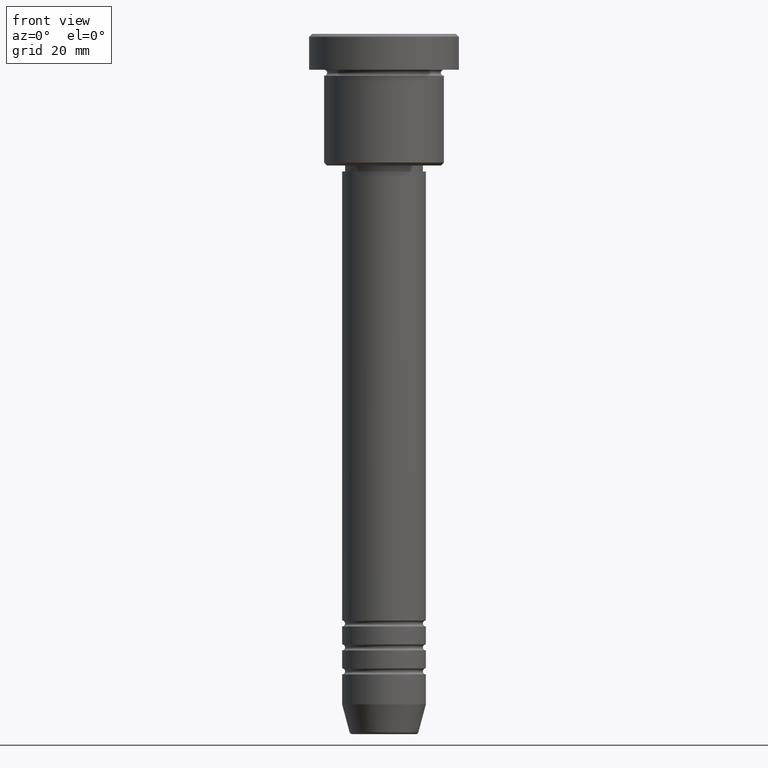
[diagram: clean part render]
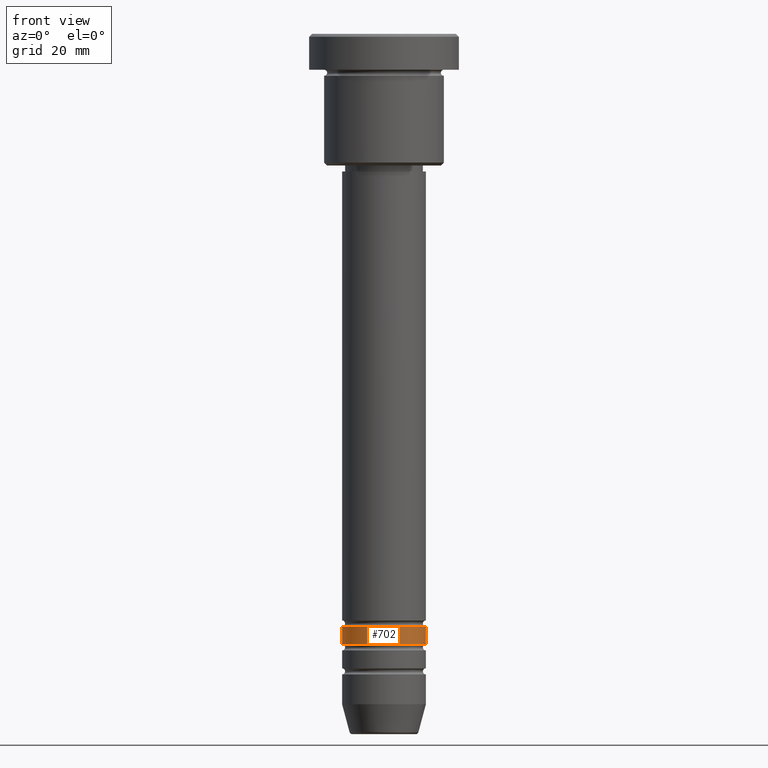
[diagram: same view with one face highlighted and labeled with its STEP entity id]
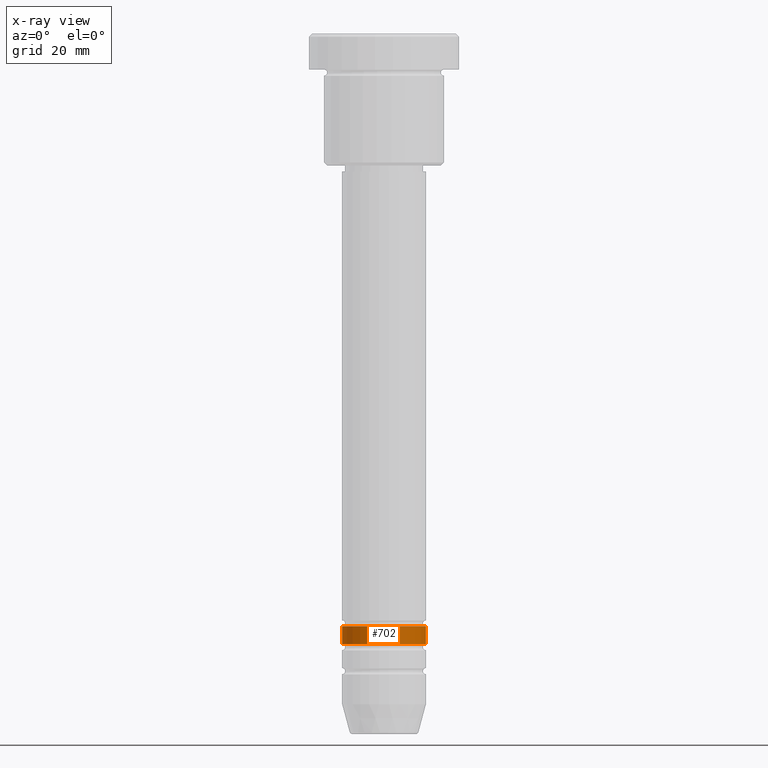
[diagram: x-ray of the same camera — body ghosted, the highlighted face saturated]
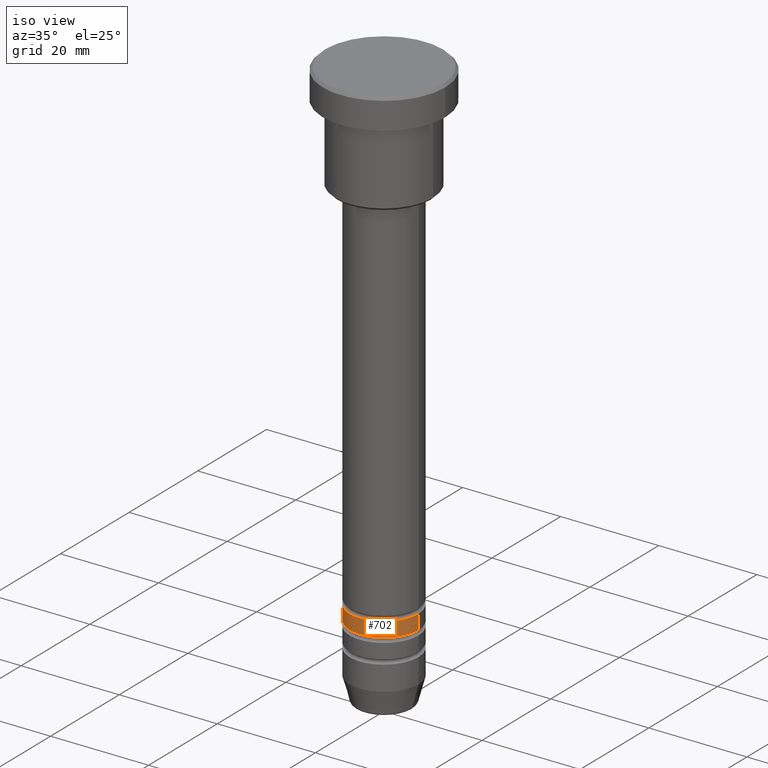
[diagram: same view with one face highlighted and labeled with its STEP entity id]
A machine part, front view. The second image highlights one B-rep face of the part: STEP entity #702.
The next image is the same camera in x-ray: the body ghosted, the highlighted face saturated — about 0% of this face is hidden behind the body in this view.
A second angle (iso view) of the same face is appended — the face is thin or edge-on in the first view.
In plain terms, the highlighted cylindrical surface (partial cylindrical patch) has radius 7 mm, axis along (-0, -0, 1).
Its self-contained STEP definition (entity closure, byte-faithful):
#29 = CARTESIAN_POINT ( 'NONE',  ( 7.000000000000000000, 0.000000000000000000, -98.99999999999990052 ) ) ;
#86 = CARTESIAN_POINT ( 'NONE',  ( -7.000000000000000888, 8.572527594031474176E-16, 0.000000000000000000 ) ) ;
#91 = CARTESIAN_POINT ( 'NONE',  ( -7.000000000000000000, 8.572527594031473190E-16, -98.99999999999990052 ) ) ;
#107 = CARTESIAN_POINT ( 'NONE',  ( -7.000000000000002665, 8.572527594031475162E-16, -101.9999999999999147 ) ) ;
#124 = AXIS2_PLACEMENT_3D ( 'NONE', #283, #642, #925 ) ;
#129 = AXIS2_PLACEMENT_3D ( 'NONE', #1131, #141, #1029 ) ;
#141 = DIRECTION ( 'NONE',  ( -0.000000000000000000, -0.000000000000000000, 1.000000000000000000 ) ) ;
#150 = FACE_OUTER_BOUND ( 'NONE', #699, .T. ) ;
#179 = EDGE_CURVE ( 'NONE', #816, #993, #1157, .T. ) ;
#190 = ORIENTED_EDGE ( 'NONE', *, *, #224, .T. ) ;
#221 = VECTOR ( 'NONE', #882, 1000.000000000000000 ) ;
#224 = EDGE_CURVE ( 'NONE', #1076, #993, #785, .T. ) ;
#283 = CARTESIAN_POINT ( 'NONE',  ( 0.000000000000000000, 0.000000000000000000, -98.99999999999990052 ) ) ;
#347 = DIRECTION ( 'NONE',  ( -0.000000000000000000, -0.000000000000000000, 1.000000000000000000 ) ) ;
#408 = CYLINDRICAL_SURFACE ( 'NONE', #129, 7.000000000000000888 ) ;
#505 = AXIS2_PLACEMENT_3D ( 'NONE', #829, #917, #1016 ) ;
#510 = ORIENTED_EDGE ( 'NONE', *, *, #1169, .F. ) ;
#521 = EDGE_CURVE ( 'NONE', #1025, #1076, #1017, .T. ) ;
#603 = VECTOR ( 'NONE', #347, 1000.000000000000000 ) ;
#642 = DIRECTION ( 'NONE',  ( -0.000000000000000000, -0.000000000000000000, 1.000000000000000000 ) ) ;
#699 = EDGE_LOOP ( 'NONE', ( #510, #867, #190, #754 ) ) ;
#702 = ADVANCED_FACE ( 'NONE', ( #150 ), #408, .T. ) ;
#754 = ORIENTED_EDGE ( 'NONE', *, *, #179, .F. ) ;
#785 = LINE ( 'NONE', #1036, #221 ) ;
#807 = LINE ( 'NONE', #86, #603 ) ;
#816 = VERTEX_POINT ( 'NONE', #91 ) ;
#829 = CARTESIAN_POINT ( 'NONE',  ( 0.000000000000000000, 0.000000000000000000, -101.9999999999999147 ) ) ;
#867 = ORIENTED_EDGE ( 'NONE', *, *, #521, .T. ) ;
#882 = DIRECTION ( 'NONE',  ( -0.000000000000000000, -0.000000000000000000, 1.000000000000000000 ) ) ;
#917 = DIRECTION ( 'NONE',  ( -0.000000000000000000, -0.000000000000000000, 1.000000000000000000 ) ) ;
#925 = DIRECTION ( 'NONE',  ( 1.000000000000000000, 0.000000000000000000, 0.000000000000000000 ) ) ;
#993 = VERTEX_POINT ( 'NONE', #29 ) ;
#1016 = DIRECTION ( 'NONE',  ( 1.000000000000000000, 0.000000000000000000, 0.000000000000000000 ) ) ;
#1017 = CIRCLE ( 'NONE', #505, 7.000000000000002665 ) ;
#1025 = VERTEX_POINT ( 'NONE', #107 ) ;
#1029 = DIRECTION ( 'NONE',  ( 1.000000000000000000, 0.000000000000000000, 0.000000000000000000 ) ) ;
#1036 = CARTESIAN_POINT ( 'NONE',  ( 7.000000000000000888, 0.000000000000000000, 0.000000000000000000 ) ) ;
#1061 = CARTESIAN_POINT ( 'NONE',  ( 7.000000000000002665, 0.000000000000000000, -101.9999999999999147 ) ) ;
#1076 = VERTEX_POINT ( 'NONE', #1061 ) ;
#1131 = CARTESIAN_POINT ( 'NONE',  ( 0.000000000000000000, 0.000000000000000000, 0.000000000000000000 ) ) ;
#1157 = CIRCLE ( 'NONE', #124, 7.000000000000000000 ) ;
#1169 = EDGE_CURVE ( 'NONE', #1025, #816, #807, .T. ) ;